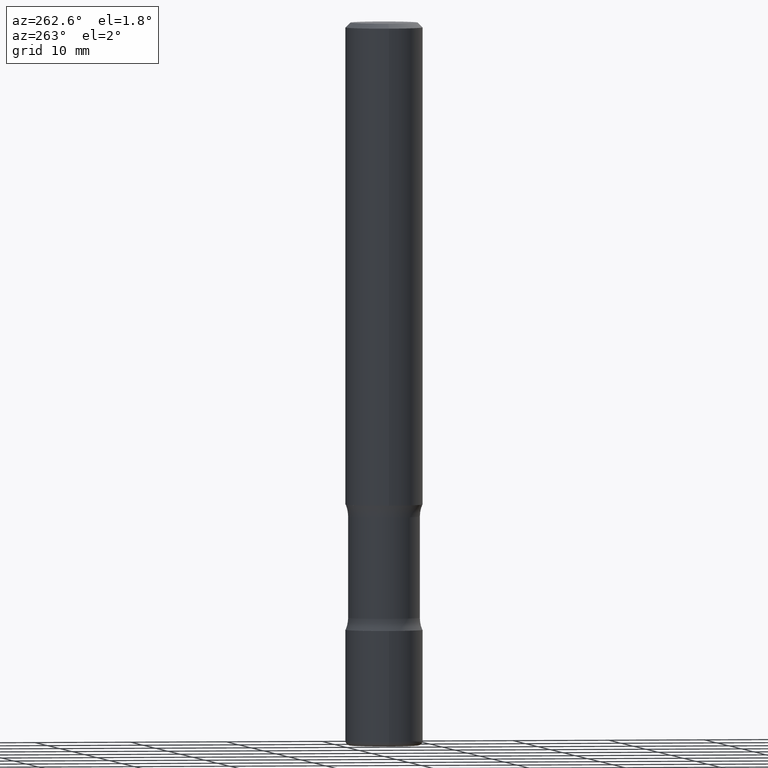
[diagram: clean part render]
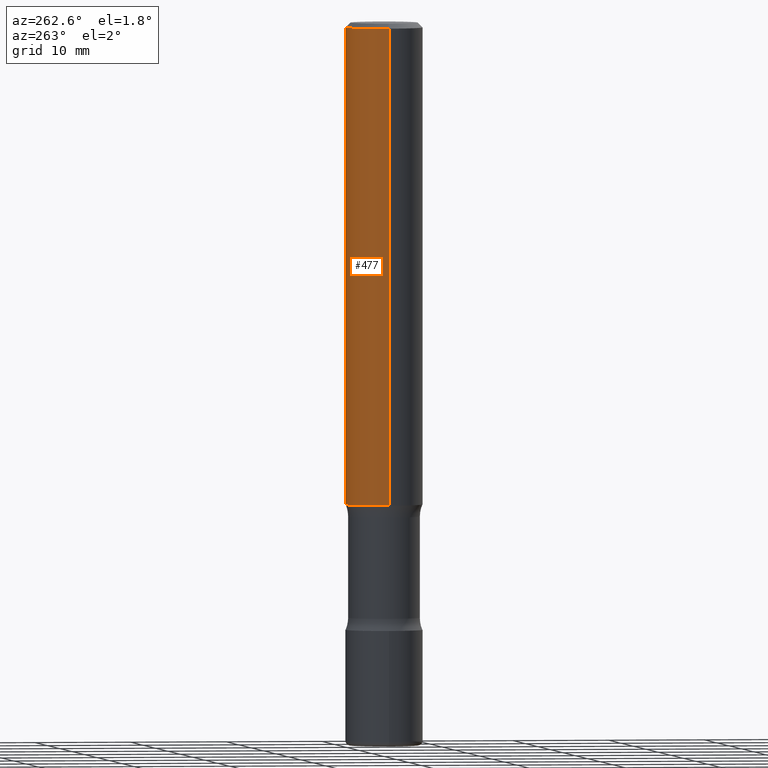
[diagram: same view with one face highlighted and labeled with its STEP entity id]
A machine part, auxiliary view. The second image highlights one B-rep face of the part: STEP entity #477.
In plain terms, the highlighted cylindrical surface (partial cylindrical patch) has radius 4.0005 mm, axis along (-0, 0, 1).
Its self-contained STEP definition (entity closure, byte-faithful):
#17 = ORIENTED_EDGE ( 'NONE', *, *, #146, .T. ) ;
#19 = DIRECTION ( 'NONE',  ( 1.000000000000000000, -6.982962677686267499E-15, 4.876176775795935232E-29 ) ) ;
#26 = VERTEX_POINT ( 'NONE', #452 ) ;
#46 = EDGE_CURVE ( 'NONE', #496, #173, #520, .T. ) ;
#54 = CARTESIAN_POINT ( 'NONE',  ( 0.1575000000000000289, -1.099816621735587283E-15, 7.679978421878599434E-30 ) ) ;
#59 = EDGE_LOOP ( 'NONE', ( #310, #17, #220, #446 ) ) ;
#69 = CYLINDRICAL_SURFACE ( 'NONE', #547, 0.1575000000000000289 ) ;
#74 = DIRECTION ( 'NONE',  ( 1.000000000000000000, -6.982962677686266711E-15, 0.000000000000000000 ) ) ;
#86 = LINE ( 'NONE', #559, #320 ) ;
#94 = DIRECTION ( 'NONE',  ( -2.445468806185136877E-29, 3.491481338843145188E-15, 1.000000000000000000 ) ) ;
#108 = CARTESIAN_POINT ( 'NONE',  ( 0.1575000000000001676, -7.972797637248319976E-15, -1.968499999999999694 ) ) ;
#146 = EDGE_CURVE ( 'NONE', #173, #557, #86, .T. ) ;
#173 = VERTEX_POINT ( 'NONE', #289 ) ;
#197 = DIRECTION ( 'NONE',  ( 1.000000000000000000, -6.982962677686267499E-15, 0.000000000000000000 ) ) ;
#220 = ORIENTED_EDGE ( 'NONE', *, *, #506, .F. ) ;
#225 = DIRECTION ( 'NONE',  ( -2.445468806185136597E-29, 3.491481338843145583E-15, 1.000000000000000000 ) ) ;
#232 = DIRECTION ( 'NONE',  ( -2.445468806185136597E-29, 3.491481338843145583E-15, 1.000000000000000000 ) ) ;
#275 = VECTOR ( 'NONE', #94, 39.37007874015748143 ) ;
#278 = DIRECTION ( 'NONE',  ( -2.445468806185136597E-29, 3.491481338843145583E-15, 1.000000000000000000 ) ) ;
#289 = CARTESIAN_POINT ( 'NONE',  ( -0.1575000000000001676, -2.352300512322635166E-15, -1.968499999999999694 ) ) ;
#290 = EDGE_CURVE ( 'NONE', #496, #26, #491, .T. ) ;
#303 = AXIS2_PLACEMENT_3D ( 'NONE', #457, #225, #74 ) ;
#310 = ORIENTED_EDGE ( 'NONE', *, *, #46, .T. ) ;
#312 = AXIS2_PLACEMENT_3D ( 'NONE', #548, #278, #197 ) ;
#320 = VECTOR ( 'NONE', #329, 39.37007874015748143 ) ;
#329 = DIRECTION ( 'NONE',  ( -2.445468806185136877E-29, 3.491481338843145188E-15, 1.000000000000000000 ) ) ;
#411 = FACE_OUTER_BOUND ( 'NONE', #59, .T. ) ;
#446 = ORIENTED_EDGE ( 'NONE', *, *, #290, .F. ) ;
#452 = CARTESIAN_POINT ( 'NONE',  ( 0.1574999999999999178, -1.150358061425878486E-15, -0.02000000000000000042 ) ) ;
#457 = CARTESIAN_POINT ( 'NONE',  ( 4.890937612370273159E-31, -6.982962677686291609E-17, -0.02000000000000000042 ) ) ;
#477 = ADVANCED_FACE ( 'NONE', ( #411 ), #69, .T. ) ;
#491 = LINE ( 'NONE', #54, #275 ) ;
#493 = CARTESIAN_POINT ( 'NONE',  ( -0.1574999999999999178, 1.029986994958723590E-15, -0.02000000000000000042 ) ) ;
#496 = VERTEX_POINT ( 'NONE', #108 ) ;
#501 = CIRCLE ( 'NONE', #303, 0.1574999999999999178 ) ;
#503 = CARTESIAN_POINT ( 'NONE',  ( 0.000000000000000000, 0.000000000000000000, 0.000000000000000000 ) ) ;
#506 = EDGE_CURVE ( 'NONE', #26, #557, #501, .T. ) ;
#520 = CIRCLE ( 'NONE', #312, 0.1575000000000001676 ) ;
#547 = AXIS2_PLACEMENT_3D ( 'NONE', #503, #232, #19 ) ;
#548 = CARTESIAN_POINT ( 'NONE',  ( 4.813905344975440714E-29, -6.872981015512730918E-15, -1.968499999999999694 ) ) ;
#557 = VERTEX_POINT ( 'NONE', #493 ) ;
#559 = CARTESIAN_POINT ( 'NONE',  ( -0.1575000000000000289, 1.119104808822157998E-15, -7.747322767151478386E-30 ) ) ;